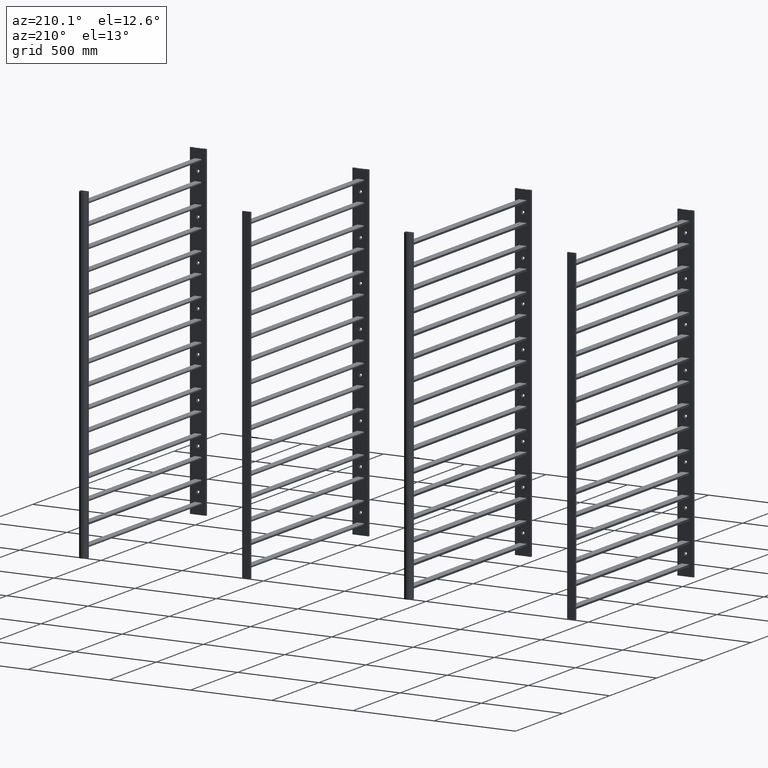
[diagram: clean part render]
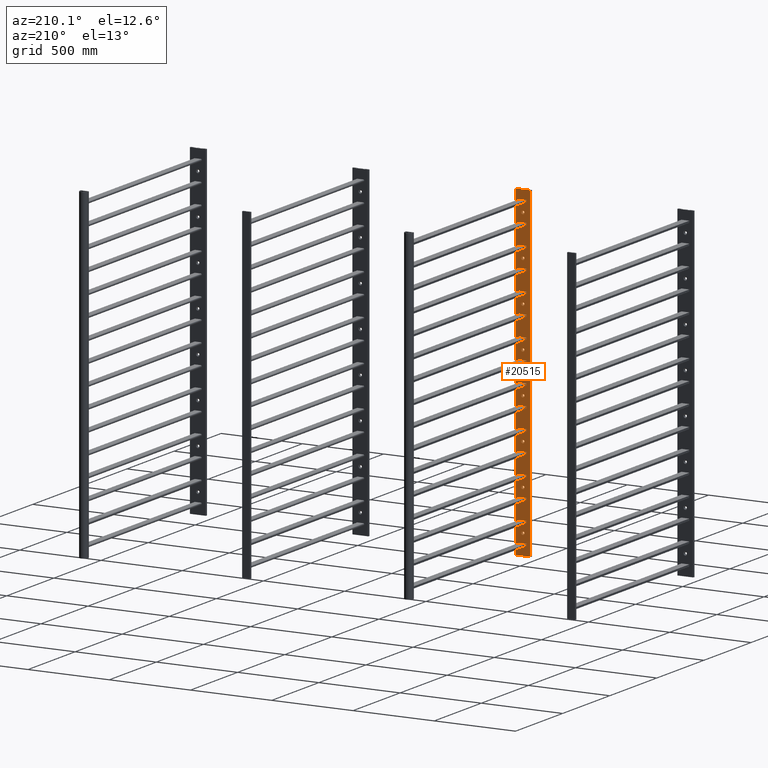
[diagram: same view with one face highlighted and labeled with its STEP entity id]
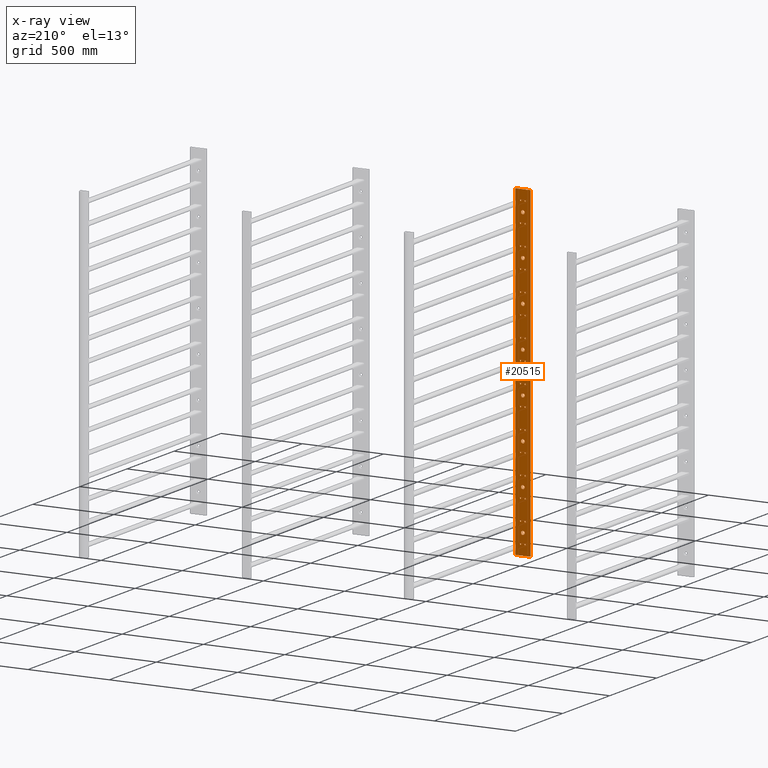
[diagram: x-ray of the same camera — body ghosted, the highlighted face saturated]
A machine part, auxiliary view. The second image highlights one B-rep face of the part: STEP entity #20515.
The next image is the same camera in x-ray: the body ghosted, the highlighted face saturated — about 0% of this face is hidden behind the body in this view.
In plain terms, the highlighted planar face has unit normal (0, 1, 0).
Its self-contained STEP definition (entity closure, byte-faithful):
#339=FACE_BOUND('',#3654,.T.);
#340=FACE_BOUND('',#3655,.T.);
#341=FACE_BOUND('',#3656,.T.);
#342=FACE_BOUND('',#3657,.T.);
#343=FACE_BOUND('',#3658,.T.);
#344=FACE_BOUND('',#3659,.T.);
#345=FACE_BOUND('',#3660,.T.);
#346=FACE_BOUND('',#3661,.T.);
#347=FACE_BOUND('',#3662,.T.);
#348=FACE_BOUND('',#3663,.T.);
#349=FACE_BOUND('',#3664,.T.);
#350=FACE_BOUND('',#3665,.T.);
#351=FACE_BOUND('',#3666,.T.);
#352=FACE_BOUND('',#3667,.T.);
#353=FACE_BOUND('',#3668,.T.);
#354=FACE_BOUND('',#3669,.T.);
#355=FACE_BOUND('',#3670,.T.);
#356=FACE_BOUND('',#3671,.T.);
#357=FACE_BOUND('',#3672,.T.);
#358=FACE_BOUND('',#3673,.T.);
#359=FACE_BOUND('',#3674,.T.);
#360=FACE_BOUND('',#3675,.T.);
#361=FACE_BOUND('',#3676,.T.);
#362=FACE_BOUND('',#3677,.T.);
#363=FACE_BOUND('',#3678,.T.);
#364=FACE_BOUND('',#3679,.T.);
#365=FACE_BOUND('',#3680,.T.);
#366=FACE_BOUND('',#3681,.T.);
#367=FACE_BOUND('',#3682,.T.);
#368=FACE_BOUND('',#3683,.T.);
#369=FACE_BOUND('',#3684,.T.);
#370=FACE_BOUND('',#3685,.T.);
#371=FACE_BOUND('',#3686,.T.);
#372=FACE_BOUND('',#3687,.T.);
#373=FACE_BOUND('',#3688,.T.);
#374=FACE_BOUND('',#3689,.T.);
#375=FACE_BOUND('',#3690,.T.);
#376=FACE_BOUND('',#3691,.T.);
#377=FACE_BOUND('',#3692,.T.);
#378=FACE_BOUND('',#3693,.T.);
#704=PLANE('',#22415);
#2648=FACE_OUTER_BOUND('',#3653,.T.);
#3653=EDGE_LOOP('',(#16621,#16622,#16623,#16624));
#3654=EDGE_LOOP('',(#16625));
#3655=EDGE_LOOP('',(#16626));
#3656=EDGE_LOOP('',(#16627));
#3657=EDGE_LOOP('',(#16628));
#3658=EDGE_LOOP('',(#16629));
#3659=EDGE_LOOP('',(#16630));
#3660=EDGE_LOOP('',(#16631));
#3661=EDGE_LOOP('',(#16632));
#3662=EDGE_LOOP('',(#16633));
#3663=EDGE_LOOP('',(#16634));
#3664=EDGE_LOOP('',(#16635));
#3665=EDGE_LOOP('',(#16636));
#3666=EDGE_LOOP('',(#16637));
#3667=EDGE_LOOP('',(#16638));
#3668=EDGE_LOOP('',(#16639));
#3669=EDGE_LOOP('',(#16640));
#3670=EDGE_LOOP('',(#16641));
#3671=EDGE_LOOP('',(#16642));
#3672=EDGE_LOOP('',(#16643));
#3673=EDGE_LOOP('',(#16644));
#3674=EDGE_LOOP('',(#16645));
#3675=EDGE_LOOP('',(#16646));
#3676=EDGE_LOOP('',(#16647));
#3677=EDGE_LOOP('',(#16648));
#3678=EDGE_LOOP('',(#16649));
#3679=EDGE_LOOP('',(#16650));
#3680=EDGE_LOOP('',(#16651));
#3681=EDGE_LOOP('',(#16652));
#3682=EDGE_LOOP('',(#16653));
#3683=EDGE_LOOP('',(#16654));
#3684=EDGE_LOOP('',(#16655));
#3685=EDGE_LOOP('',(#16656));
#3686=EDGE_LOOP('',(#16657));
#3687=EDGE_LOOP('',(#16658));
#3688=EDGE_LOOP('',(#16659));
#3689=EDGE_LOOP('',(#16660));
#3690=EDGE_LOOP('',(#16661));
#3691=EDGE_LOOP('',(#16662));
#3692=EDGE_LOOP('',(#16663));
#3693=EDGE_LOOP('',(#16664));
#5012=LINE('',#36270,#6551);
#5013=LINE('',#36273,#6552);
#5014=LINE('',#36275,#6553);
#5015=LINE('',#36276,#6554);
#6551=VECTOR('',#27089,10.);
#6552=VECTOR('',#27092,10.);
#6553=VECTOR('',#27093,10.);
#6554=VECTOR('',#27094,10.);
#7272=CIRCLE('',#21090,11.25);
#7277=CIRCLE('',#21121,11.25);
#7282=CIRCLE('',#21152,11.25);
#7287=CIRCLE('',#21183,11.25);
#7292=CIRCLE('',#21214,11.25);
#7297=CIRCLE('',#21245,11.25);
#7302=CIRCLE('',#21276,11.25);
#7309=CIRCLE('',#21497,11.25);
#7327=CIRCLE('',#21558,3.24999999999994);
#7330=CIRCLE('',#21564,3.25000000000013);
#7335=CIRCLE('',#21576,3.24999999999994);
#7338=CIRCLE('',#21582,3.25000000000013);
#7343=CIRCLE('',#21594,3.24999999999994);
#7346=CIRCLE('',#21600,3.25000000000013);
#7351=CIRCLE('',#21612,3.24999999999994);
#7354=CIRCLE('',#21618,3.25000000000013);
#7359=CIRCLE('',#21630,3.24999999999994);
#7362=CIRCLE('',#21636,3.25000000000013);
#7367=CIRCLE('',#21648,3.24999999999994);
#7370=CIRCLE('',#21654,3.25000000000013);
#7375=CIRCLE('',#21666,3.24999999999994);
#7378=CIRCLE('',#21672,3.25000000000013);
#7383=CIRCLE('',#21684,3.24999999999994);
#7386=CIRCLE('',#21690,3.25000000000013);
#7391=CIRCLE('',#21702,3.24999999999994);
#7394=CIRCLE('',#21708,3.25000000000013);
#7399=CIRCLE('',#21720,3.24999999999994);
#7402=CIRCLE('',#21726,3.25000000000013);
#7407=CIRCLE('',#21738,3.24999999999994);
#7410=CIRCLE('',#21744,3.25000000000013);
#7415=CIRCLE('',#21756,3.24999999999994);
#7418=CIRCLE('',#21762,3.25000000000013);
#7423=CIRCLE('',#21774,3.24999999999994);
#7426=CIRCLE('',#21780,3.25000000000013);
#7431=CIRCLE('',#21792,3.24999999999994);
#7434=CIRCLE('',#21798,3.25000000000013);
#7439=CIRCLE('',#21810,3.24999999999994);
#7442=CIRCLE('',#21816,3.25000000000013);
#7449=CIRCLE('',#21894,3.24999999999994);
#7451=CIRCLE('',#21899,3.25000000000013);
#8264=VERTEX_POINT('',#30213);
#8319=VERTEX_POINT('',#30641);
#8374=VERTEX_POINT('',#31069);
#8429=VERTEX_POINT('',#31497);
#8484=VERTEX_POINT('',#31925);
#8539=VERTEX_POINT('',#32353);
#8594=VERTEX_POINT('',#32781);
#8681=VERTEX_POINT('',#33788);
#8740=VERTEX_POINT('',#34117);
#8745=VERTEX_POINT('',#34129);
#8756=VERTEX_POINT('',#34153);
#8761=VERTEX_POINT('',#34165);
#8772=VERTEX_POINT('',#34189);
#8777=VERTEX_POINT('',#34201);
#8788=VERTEX_POINT('',#34225);
#8793=VERTEX_POINT('',#34237);
#8804=VERTEX_POINT('',#34261);
#8809=VERTEX_POINT('',#34273);
#8820=VERTEX_POINT('',#34297);
#8825=VERTEX_POINT('',#34309);
#8836=VERTEX_POINT('',#34333);
#8841=VERTEX_POINT('',#34345);
#8852=VERTEX_POINT('',#34369);
#8857=VERTEX_POINT('',#34381);
#8868=VERTEX_POINT('',#34405);
#8873=VERTEX_POINT('',#34417);
#8884=VERTEX_POINT('',#34441);
#8889=VERTEX_POINT('',#34453);
#8900=VERTEX_POINT('',#34477);
#8905=VERTEX_POINT('',#34489);
#8916=VERTEX_POINT('',#34513);
#8921=VERTEX_POINT('',#34525);
#8932=VERTEX_POINT('',#34549);
#8937=VERTEX_POINT('',#34561);
#8948=VERTEX_POINT('',#34585);
#8953=VERTEX_POINT('',#34597);
#8964=VERTEX_POINT('',#34621);
#8969=VERTEX_POINT('',#34633);
#8994=VERTEX_POINT('',#34839);
#8998=VERTEX_POINT('',#34849);
#9456=VERTEX_POINT('',#36266);
#9457=VERTEX_POINT('',#36268);
#9458=VERTEX_POINT('',#36272);
#9459=VERTEX_POINT('',#36274);
#10386=EDGE_CURVE('',#8264,#8264,#7272,.T.);
#10443=EDGE_CURVE('',#8319,#8319,#7277,.T.);
#10500=EDGE_CURVE('',#8374,#8374,#7282,.T.);
#10557=EDGE_CURVE('',#8429,#8429,#7287,.T.);
#10614=EDGE_CURVE('',#8484,#8484,#7292,.T.);
#10671=EDGE_CURVE('',#8539,#8539,#7297,.T.);
#10728=EDGE_CURVE('',#8594,#8594,#7302,.T.);
#10999=EDGE_CURVE('',#8681,#8681,#7309,.T.);
#11086=EDGE_CURVE('',#8740,#8740,#7327,.T.);
#11092=EDGE_CURVE('',#8745,#8745,#7330,.T.);
#11104=EDGE_CURVE('',#8756,#8756,#7335,.T.);
#11110=EDGE_CURVE('',#8761,#8761,#7338,.T.);
#11122=EDGE_CURVE('',#8772,#8772,#7343,.T.);
#11128=EDGE_CURVE('',#8777,#8777,#7346,.T.);
#11140=EDGE_CURVE('',#8788,#8788,#7351,.T.);
#11146=EDGE_CURVE('',#8793,#8793,#7354,.T.);
#11158=EDGE_CURVE('',#8804,#8804,#7359,.T.);
#11164=EDGE_CURVE('',#8809,#8809,#7362,.T.);
#11176=EDGE_CURVE('',#8820,#8820,#7367,.T.);
#11182=EDGE_CURVE('',#8825,#8825,#7370,.T.);
#11194=EDGE_CURVE('',#8836,#8836,#7375,.T.);
#11200=EDGE_CURVE('',#8841,#8841,#7378,.T.);
#11212=EDGE_CURVE('',#8852,#8852,#7383,.T.);
#11218=EDGE_CURVE('',#8857,#8857,#7386,.T.);
#11230=EDGE_CURVE('',#8868,#8868,#7391,.T.);
#11236=EDGE_CURVE('',#8873,#8873,#7394,.T.);
#11248=EDGE_CURVE('',#8884,#8884,#7399,.T.);
#11254=EDGE_CURVE('',#8889,#8889,#7402,.T.);
#11266=EDGE_CURVE('',#8900,#8900,#7407,.T.);
#11272=EDGE_CURVE('',#8905,#8905,#7410,.T.);
#11284=EDGE_CURVE('',#8916,#8916,#7415,.T.);
#11290=EDGE_CURVE('',#8921,#8921,#7418,.T.);
#11302=EDGE_CURVE('',#8932,#8932,#7423,.T.);
#11308=EDGE_CURVE('',#8937,#8937,#7426,.T.);
#11320=EDGE_CURVE('',#8948,#8948,#7431,.T.);
#11326=EDGE_CURVE('',#8953,#8953,#7434,.T.);
#11338=EDGE_CURVE('',#8964,#8964,#7439,.T.);
#11344=EDGE_CURVE('',#8969,#8969,#7442,.T.);
#11462=EDGE_CURVE('',#8994,#8994,#7449,.T.);
#11467=EDGE_CURVE('',#8998,#8998,#7451,.T.);
#12178=EDGE_CURVE('',#9456,#9457,#5012,.T.);
#12179=EDGE_CURVE('',#9458,#9456,#5013,.T.);
#12180=EDGE_CURVE('',#9459,#9457,#5014,.T.);
#12181=EDGE_CURVE('',#9458,#9459,#5015,.T.);
#16621=ORIENTED_EDGE('',*,*,#12179,.T.);
#16622=ORIENTED_EDGE('',*,*,#12178,.T.);
#16623=ORIENTED_EDGE('',*,*,#12180,.F.);
#16624=ORIENTED_EDGE('',*,*,#12181,.F.);
#16625=ORIENTED_EDGE('',*,*,#10386,.T.);
#16626=ORIENTED_EDGE('',*,*,#10443,.T.);
#16627=ORIENTED_EDGE('',*,*,#10500,.T.);
#16628=ORIENTED_EDGE('',*,*,#10557,.T.);
#16629=ORIENTED_EDGE('',*,*,#10614,.T.);
#16630=ORIENTED_EDGE('',*,*,#10671,.T.);
#16631=ORIENTED_EDGE('',*,*,#10728,.T.);
#16632=ORIENTED_EDGE('',*,*,#10999,.T.);
#16633=ORIENTED_EDGE('',*,*,#11086,.T.);
#16634=ORIENTED_EDGE('',*,*,#11092,.T.);
#16635=ORIENTED_EDGE('',*,*,#11104,.T.);
#16636=ORIENTED_EDGE('',*,*,#11110,.T.);
#16637=ORIENTED_EDGE('',*,*,#11122,.T.);
#16638=ORIENTED_EDGE('',*,*,#11128,.T.);
#16639=ORIENTED_EDGE('',*,*,#11140,.T.);
#16640=ORIENTED_EDGE('',*,*,#11146,.T.);
#16641=ORIENTED_EDGE('',*,*,#11158,.T.);
#16642=ORIENTED_EDGE('',*,*,#11164,.T.);
#16643=ORIENTED_EDGE('',*,*,#11176,.T.);
#16644=ORIENTED_EDGE('',*,*,#11182,.T.);
#16645=ORIENTED_EDGE('',*,*,#11194,.T.);
#16646=ORIENTED_EDGE('',*,*,#11200,.T.);
#16647=ORIENTED_EDGE('',*,*,#11212,.T.);
#16648=ORIENTED_EDGE('',*,*,#11218,.T.);
#16649=ORIENTED_EDGE('',*,*,#11230,.T.);
#16650=ORIENTED_EDGE('',*,*,#11236,.T.);
#16651=ORIENTED_EDGE('',*,*,#11248,.T.);
#16652=ORIENTED_EDGE('',*,*,#11254,.T.);
#16653=ORIENTED_EDGE('',*,*,#11266,.T.);
#16654=ORIENTED_EDGE('',*,*,#11272,.T.);
#16655=ORIENTED_EDGE('',*,*,#11284,.T.);
#16656=ORIENTED_EDGE('',*,*,#11290,.T.);
#16657=ORIENTED_EDGE('',*,*,#11302,.T.);
#16658=ORIENTED_EDGE('',*,*,#11308,.T.);
#16659=ORIENTED_EDGE('',*,*,#11320,.T.);
#16660=ORIENTED_EDGE('',*,*,#11326,.T.);
#16661=ORIENTED_EDGE('',*,*,#11338,.T.);
#16662=ORIENTED_EDGE('',*,*,#11344,.T.);
#16663=ORIENTED_EDGE('',*,*,#11462,.T.);
#16664=ORIENTED_EDGE('',*,*,#11467,.T.);
#20515=ADVANCED_FACE('',(#2648,#339,#340,#341,#342,#343,#344,#345,#346,
#347,#348,#349,#350,#351,#352,#353,#354,#355,#356,#357,#358,#359,#360,#361,
#362,#363,#364,#365,#366,#367,#368,#369,#370,#371,#372,#373,#374,#375,#376,
#377,#378),#704,.T.);
#21090=AXIS2_PLACEMENT_3D('',#30214,#23621,#23622);
#21121=AXIS2_PLACEMENT_3D('',#30642,#23685,#23686);
#21152=AXIS2_PLACEMENT_3D('',#31070,#23749,#23750);
#21183=AXIS2_PLACEMENT_3D('',#31498,#23813,#23814);
#21214=AXIS2_PLACEMENT_3D('',#31926,#23877,#23878);
#21245=AXIS2_PLACEMENT_3D('',#32354,#23941,#23942);
#21276=AXIS2_PLACEMENT_3D('',#32782,#24005,#24006);
#21497=AXIS2_PLACEMENT_3D('',#33789,#24636,#24637);
#21558=AXIS2_PLACEMENT_3D('',#34119,#24798,#24799);
#21564=AXIS2_PLACEMENT_3D('',#34131,#24811,#24812);
#21576=AXIS2_PLACEMENT_3D('',#34155,#24836,#24837);
#21582=AXIS2_PLACEMENT_3D('',#34167,#24849,#24850);
#21594=AXIS2_PLACEMENT_3D('',#34191,#24874,#24875);
#21600=AXIS2_PLACEMENT_3D('',#34203,#24887,#24888);
#21612=AXIS2_PLACEMENT_3D('',#34227,#24912,#24913);
#21618=AXIS2_PLACEMENT_3D('',#34239,#24925,#24926);
#21630=AXIS2_PLACEMENT_3D('',#34263,#24950,#24951);
#21636=AXIS2_PLACEMENT_3D('',#34275,#24963,#24964);
#21648=AXIS2_PLACEMENT_3D('',#34299,#24988,#24989);
#21654=AXIS2_PLACEMENT_3D('',#34311,#25001,#25002);
#21666=AXIS2_PLACEMENT_3D('',#34335,#25026,#25027);
#21672=AXIS2_PLACEMENT_3D('',#34347,#25039,#25040);
#21684=AXIS2_PLACEMENT_3D('',#34371,#25064,#25065);
#21690=AXIS2_PLACEMENT_3D('',#34383,#25077,#25078);
#21702=AXIS2_PLACEMENT_3D('',#34407,#25102,#25103);
#21708=AXIS2_PLACEMENT_3D('',#34419,#25115,#25116);
#21720=AXIS2_PLACEMENT_3D('',#34443,#25140,#25141);
#21726=AXIS2_PLACEMENT_3D('',#34455,#25153,#25154);
#21738=AXIS2_PLACEMENT_3D('',#34479,#25178,#25179);
#21744=AXIS2_PLACEMENT_3D('',#34491,#25191,#25192);
#21756=AXIS2_PLACEMENT_3D('',#34515,#25216,#25217);
#21762=AXIS2_PLACEMENT_3D('',#34527,#25229,#25230);
#21774=AXIS2_PLACEMENT_3D('',#34551,#25254,#25255);
#21780=AXIS2_PLACEMENT_3D('',#34563,#25267,#25268);
#21792=AXIS2_PLACEMENT_3D('',#34587,#25292,#25293);
#21798=AXIS2_PLACEMENT_3D('',#34599,#25305,#25306);
#21810=AXIS2_PLACEMENT_3D('',#34623,#25330,#25331);
#21816=AXIS2_PLACEMENT_3D('',#34635,#25343,#25344);
#21894=AXIS2_PLACEMENT_3D('',#34841,#25602,#25603);
#21899=AXIS2_PLACEMENT_3D('',#34851,#25613,#25614);
#22415=AXIS2_PLACEMENT_3D('',#36271,#27090,#27091);
#23621=DIRECTION('center_axis',(-7.08652994441595E-17,-1.,0.));
#23622=DIRECTION('ref_axis',(1.,-7.08652994441595E-17,0.));
#23685=DIRECTION('center_axis',(-7.08652994441595E-17,-1.,0.));
#23686=DIRECTION('ref_axis',(1.,-7.08652994441595E-17,0.));
#23749=DIRECTION('center_axis',(-7.08652994441595E-17,-1.,0.));
#23750=DIRECTION('ref_axis',(1.,-7.08652994441595E-17,0.));
#23813=DIRECTION('center_axis',(-7.08652994441595E-17,-1.,0.));
#23814=DIRECTION('ref_axis',(1.,-7.08652994441595E-17,0.));
#23877=DIRECTION('center_axis',(-7.08652994441595E-17,-1.,0.));
#23878=DIRECTION('ref_axis',(1.,-7.08652994441595E-17,0.));
#23941=DIRECTION('center_axis',(-7.08652994441595E-17,-1.,0.));
#23942=DIRECTION('ref_axis',(1.,-7.08652994441595E-17,0.));
#24005=DIRECTION('center_axis',(-7.08652994441595E-17,-1.,0.));
#24006=DIRECTION('ref_axis',(1.,-7.08652994441595E-17,0.));
#24636=DIRECTION('center_axis',(-7.08652994441595E-17,-1.,0.));
#24637=DIRECTION('ref_axis',(1.,-7.08652994441595E-17,0.));
#24798=DIRECTION('center_axis',(-7.08652994441595E-17,-1.,0.));
#24799=DIRECTION('ref_axis',(1.,0.,0.));
#24811=DIRECTION('center_axis',(-7.08652994441595E-17,-1.,0.));
#24812=DIRECTION('ref_axis',(1.,0.,0.));
#24836=DIRECTION('center_axis',(-7.08652994441595E-17,-1.,0.));
#24837=DIRECTION('ref_axis',(1.,0.,0.));
#24849=DIRECTION('center_axis',(-7.08652994441595E-17,-1.,0.));
#24850=DIRECTION('ref_axis',(1.,0.,0.));
#24874=DIRECTION('center_axis',(-7.08652994441595E-17,-1.,0.));
#24875=DIRECTION('ref_axis',(1.,0.,0.));
#24887=DIRECTION('center_axis',(-7.08652994441595E-17,-1.,0.));
#24888=DIRECTION('ref_axis',(1.,0.,0.));
#24912=DIRECTION('center_axis',(-7.08652994441595E-17,-1.,0.));
#24913=DIRECTION('ref_axis',(1.,0.,0.));
#24925=DIRECTION('center_axis',(-7.08652994441595E-17,-1.,0.));
#24926=DIRECTION('ref_axis',(1.,0.,0.));
#24950=DIRECTION('center_axis',(-7.08652994441595E-17,-1.,0.));
#24951=DIRECTION('ref_axis',(1.,0.,0.));
#24963=DIRECTION('center_axis',(-7.08652994441595E-17,-1.,0.));
#24964=DIRECTION('ref_axis',(1.,0.,0.));
#24988=DIRECTION('center_axis',(-7.08652994441595E-17,-1.,0.));
#24989=DIRECTION('ref_axis',(1.,0.,0.));
#25001=DIRECTION('center_axis',(-7.08652994441595E-17,-1.,0.));
#25002=DIRECTION('ref_axis',(1.,0.,0.));
#25026=DIRECTION('center_axis',(-7.08652994441595E-17,-1.,0.));
#25027=DIRECTION('ref_axis',(1.,0.,0.));
#25039=DIRECTION('center_axis',(-7.08652994441595E-17,-1.,0.));
#25040=DIRECTION('ref_axis',(1.,0.,0.));
#25064=DIRECTION('center_axis',(-7.08652994441595E-17,-1.,0.));
#25065=DIRECTION('ref_axis',(1.,0.,0.));
#25077=DIRECTION('center_axis',(-7.08652994441595E-17,-1.,0.));
#25078=DIRECTION('ref_axis',(1.,0.,0.));
#25102=DIRECTION('center_axis',(-7.08652994441595E-17,-1.,0.));
#25103=DIRECTION('ref_axis',(1.,0.,0.));
#25115=DIRECTION('center_axis',(-7.08652994441595E-17,-1.,0.));
#25116=DIRECTION('ref_axis',(1.,0.,0.));
#25140=DIRECTION('center_axis',(-7.08652994441595E-17,-1.,0.));
#25141=DIRECTION('ref_axis',(1.,0.,0.));
#25153=DIRECTION('center_axis',(-7.08652994441595E-17,-1.,0.));
#25154=DIRECTION('ref_axis',(1.,0.,0.));
#25178=DIRECTION('center_axis',(-7.08652994441595E-17,-1.,0.));
#25179=DIRECTION('ref_axis',(1.,0.,0.));
#25191=DIRECTION('center_axis',(-7.08652994441595E-17,-1.,0.));
#25192=DIRECTION('ref_axis',(1.,0.,0.));
#25216=DIRECTION('center_axis',(-7.08652994441595E-17,-1.,0.));
#25217=DIRECTION('ref_axis',(1.,0.,0.));
#25229=DIRECTION('center_axis',(-7.08652994441595E-17,-1.,0.));
#25230=DIRECTION('ref_axis',(1.,0.,0.));
#25254=DIRECTION('center_axis',(-7.08652994441595E-17,-1.,0.));
#25255=DIRECTION('ref_axis',(1.,0.,0.));
#25267=DIRECTION('center_axis',(-7.08652994441595E-17,-1.,0.));
#25268=DIRECTION('ref_axis',(1.,0.,0.));
#25292=DIRECTION('center_axis',(-7.08652994441595E-17,-1.,0.));
#25293=DIRECTION('ref_axis',(1.,0.,0.));
#25305=DIRECTION('center_axis',(-7.08652994441595E-17,-1.,0.));
#25306=DIRECTION('ref_axis',(1.,0.,0.));
#25330=DIRECTION('center_axis',(-7.08652994441595E-17,-1.,0.));
#25331=DIRECTION('ref_axis',(1.,0.,0.));
#25343=DIRECTION('center_axis',(-7.08652994441595E-17,-1.,0.));
#25344=DIRECTION('ref_axis',(1.,0.,0.));
#25602=DIRECTION('center_axis',(-7.08652994441595E-17,-1.,0.));
#25603=DIRECTION('ref_axis',(1.,0.,0.));
#25613=DIRECTION('center_axis',(-7.08652994441595E-17,-1.,0.));
#25614=DIRECTION('ref_axis',(1.,0.,0.));
#27089=DIRECTION('',(0.,0.,1.));
#27090=DIRECTION('center_axis',(7.08652994441595E-17,1.,0.));
#27091=DIRECTION('ref_axis',(-1.,7.08652994441595E-17,0.));
#27092=DIRECTION('',(-1.,7.08652994441595E-17,0.));
#27093=DIRECTION('',(-1.,7.08652994441595E-17,0.));
#27094=DIRECTION('',(0.,0.,1.));
#30213=CARTESIAN_POINT('',(39.0836617426081,12.4360971046517,125.));
#30214=CARTESIAN_POINT('Origin',(50.3336617426081,12.4360971046517,125.));
#30641=CARTESIAN_POINT('',(39.0836617426081,12.4360971046517,375.));
#30642=CARTESIAN_POINT('Origin',(50.3336617426081,12.4360971046517,375.));
#31069=CARTESIAN_POINT('',(39.0836617426081,12.4360971046517,625.));
#31070=CARTESIAN_POINT('Origin',(50.3336617426081,12.4360971046517,625.));
#31497=CARTESIAN_POINT('',(39.0836617426081,12.4360971046517,875.));
#31498=CARTESIAN_POINT('Origin',(50.3336617426081,12.4360971046517,875.));
#31925=CARTESIAN_POINT('',(39.0836617426081,12.4360971046517,1125.));
#31926=CARTESIAN_POINT('Origin',(50.3336617426081,12.4360971046517,1125.));
#32353=CARTESIAN_POINT('',(39.0836617426081,12.4360971046518,1375.));
#32354=CARTESIAN_POINT('Origin',(50.3336617426081,12.4360971046517,1375.));
#32781=CARTESIAN_POINT('',(39.0836617426081,12.4360971046518,1625.));
#32782=CARTESIAN_POINT('Origin',(50.3336617426081,12.4360971046517,1625.));
#33788=CARTESIAN_POINT('',(39.0836617426081,12.4360971046518,1875.));
#33789=CARTESIAN_POINT('Origin',(50.3336617426081,12.4360971046517,1875.));
#34117=CARTESIAN_POINT('',(33.0629702741351,12.4360971046517,62.5));
#34119=CARTESIAN_POINT('Origin',(36.3129702741351,12.4360971046517,62.5));
#34129=CARTESIAN_POINT('',(61.1043532110813,12.4360971046517,62.5));
#34131=CARTESIAN_POINT('Origin',(64.3543532110814,12.4360971046517,62.5));
#34153=CARTESIAN_POINT('',(33.0629702741351,12.4360971046517,187.5));
#34155=CARTESIAN_POINT('Origin',(36.3129702741351,12.4360971046517,187.5));
#34165=CARTESIAN_POINT('',(61.1043532110813,12.4360971046517,187.5));
#34167=CARTESIAN_POINT('Origin',(64.3543532110814,12.4360971046517,187.5));
#34189=CARTESIAN_POINT('',(33.0629702741351,12.4360971046517,312.5));
#34191=CARTESIAN_POINT('Origin',(36.3129702741351,12.4360971046517,312.5));
#34201=CARTESIAN_POINT('',(61.1043532110813,12.4360971046517,312.5));
#34203=CARTESIAN_POINT('Origin',(64.3543532110814,12.4360971046517,312.5));
#34225=CARTESIAN_POINT('',(33.0629702741351,12.4360971046517,437.5));
#34227=CARTESIAN_POINT('Origin',(36.3129702741351,12.4360971046517,437.5));
#34237=CARTESIAN_POINT('',(61.1043532110813,12.4360971046517,437.5));
#34239=CARTESIAN_POINT('Origin',(64.3543532110814,12.4360971046517,437.5));
#34261=CARTESIAN_POINT('',(33.0629702741351,12.4360971046517,562.5));
#34263=CARTESIAN_POINT('Origin',(36.3129702741351,12.4360971046517,562.5));
#34273=CARTESIAN_POINT('',(61.1043532110813,12.4360971046517,562.5));
#34275=CARTESIAN_POINT('Origin',(64.3543532110814,12.4360971046517,562.5));
#34297=CARTESIAN_POINT('',(33.0629702741351,12.4360971046517,687.5));
#34299=CARTESIAN_POINT('Origin',(36.3129702741351,12.4360971046517,687.5));
#34309=CARTESIAN_POINT('',(61.1043532110813,12.4360971046517,687.5));
#34311=CARTESIAN_POINT('Origin',(64.3543532110814,12.4360971046517,687.5));
#34333=CARTESIAN_POINT('',(33.0629702741351,12.4360971046517,812.5));
#34335=CARTESIAN_POINT('Origin',(36.3129702741351,12.4360971046517,812.5));
#34345=CARTESIAN_POINT('',(61.1043532110813,12.4360971046517,812.5));
#34347=CARTESIAN_POINT('Origin',(64.3543532110814,12.4360971046517,812.5));
#34369=CARTESIAN_POINT('',(33.0629702741351,12.4360971046517,937.5));
#34371=CARTESIAN_POINT('Origin',(36.3129702741351,12.4360971046517,937.5));
#34381=CARTESIAN_POINT('',(61.1043532110813,12.4360971046517,937.5));
#34383=CARTESIAN_POINT('Origin',(64.3543532110814,12.4360971046517,937.5));
#34405=CARTESIAN_POINT('',(33.0629702741351,12.4360971046517,1062.5));
#34407=CARTESIAN_POINT('Origin',(36.3129702741351,12.4360971046517,1062.5));
#34417=CARTESIAN_POINT('',(61.1043532110813,12.4360971046517,1062.5));
#34419=CARTESIAN_POINT('Origin',(64.3543532110814,12.4360971046517,1062.5));
#34441=CARTESIAN_POINT('',(33.0629702741351,12.4360971046517,1187.5));
#34443=CARTESIAN_POINT('Origin',(36.3129702741351,12.4360971046517,1187.5));
#34453=CARTESIAN_POINT('',(61.1043532110813,12.4360971046517,1187.5));
#34455=CARTESIAN_POINT('Origin',(64.3543532110814,12.4360971046517,1187.5));
#34477=CARTESIAN_POINT('',(33.0629702741351,12.4360971046517,1312.5));
#34479=CARTESIAN_POINT('Origin',(36.3129702741351,12.4360971046517,1312.5));
#34489=CARTESIAN_POINT('',(61.1043532110813,12.4360971046517,1312.5));
#34491=CARTESIAN_POINT('Origin',(64.3543532110814,12.4360971046517,1312.5));
#34513=CARTESIAN_POINT('',(33.0629702741351,12.4360971046517,1437.5));
#34515=CARTESIAN_POINT('Origin',(36.3129702741351,12.4360971046517,1437.5));
#34525=CARTESIAN_POINT('',(61.1043532110813,12.4360971046517,1437.5));
#34527=CARTESIAN_POINT('Origin',(64.3543532110814,12.4360971046517,1437.5));
#34549=CARTESIAN_POINT('',(33.0629702741351,12.4360971046517,1562.5));
#34551=CARTESIAN_POINT('Origin',(36.3129702741351,12.4360971046517,1562.5));
#34561=CARTESIAN_POINT('',(61.1043532110813,12.4360971046517,1562.5));
#34563=CARTESIAN_POINT('Origin',(64.3543532110814,12.4360971046517,1562.5));
#34585=CARTESIAN_POINT('',(33.0629702741351,12.4360971046517,1687.5));
#34587=CARTESIAN_POINT('Origin',(36.3129702741351,12.4360971046517,1687.5));
#34597=CARTESIAN_POINT('',(61.1043532110813,12.4360971046517,1687.5));
#34599=CARTESIAN_POINT('Origin',(64.3543532110814,12.4360971046517,1687.5));
#34621=CARTESIAN_POINT('',(33.0629702741351,12.4360971046517,1812.5));
#34623=CARTESIAN_POINT('Origin',(36.3129702741351,12.4360971046517,1812.5));
#34633=CARTESIAN_POINT('',(61.1043532110813,12.4360971046517,1812.5));
#34635=CARTESIAN_POINT('Origin',(64.3543532110814,12.4360971046517,1812.5));
#34839=CARTESIAN_POINT('',(33.0629702741351,12.4360971046517,1937.5));
#34841=CARTESIAN_POINT('Origin',(36.3129702741351,12.4360971046517,1937.5));
#34849=CARTESIAN_POINT('',(61.1043532110813,12.4360971046517,1937.5));
#34851=CARTESIAN_POINT('Origin',(64.3543532110814,12.4360971046517,1937.5));
#36266=CARTESIAN_POINT('',(3.33366174260811,12.4360971046517,0.));
#36268=CARTESIAN_POINT('',(3.33366174260812,12.4360971046517,2000.));
#36270=CARTESIAN_POINT('',(3.33366174260811,12.4360971046517,0.));
#36271=CARTESIAN_POINT('Origin',(97.3336617426073,12.4360971046517,0.));
#36272=CARTESIAN_POINT('',(97.3336617426073,12.4360971046517,0.));
#36273=CARTESIAN_POINT('',(97.3336617426073,12.4360971046517,0.));
#36274=CARTESIAN_POINT('',(97.3336617426073,12.4360971046517,2000.));
#36275=CARTESIAN_POINT('',(97.3336617426073,12.4360971046517,2000.));
#36276=CARTESIAN_POINT('',(97.3336617426073,12.4360971046517,0.));